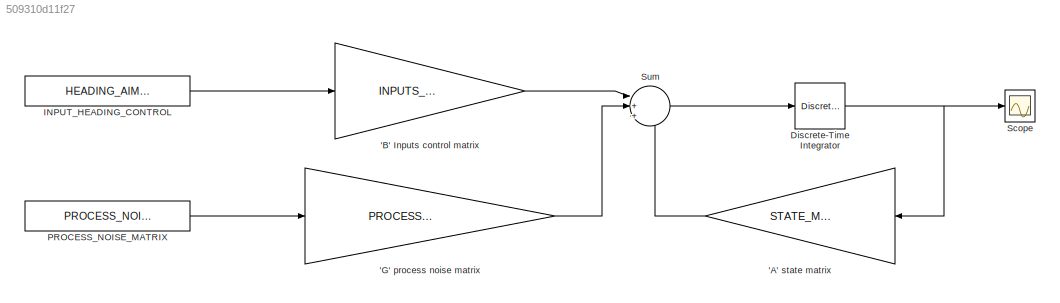
MODEL slx_509310d11f27
KIND model
CONFIG AbsTol = auto
CONFIG EnableMultiTasking = off
CONFIG FixedStep = auto
CONFIG MaxStep = auto
CONFIG MinStep = auto
CONFIG RelTol = 1e-3
CONFIG SampleTimeConstraint = Unconstrained
CONFIG SolverName = VariableStepAuto
CONFIG StartTime = 0.0
CONFIG StopTime = 10.0
BLOCK [Gain] 'A' state matrix
  Gain = STATE_MATRIX_MODEL_A
BLOCK [Gain] 'B' Inputs control matrix
  Gain = INPUTS_CONTROL_B
BLOCK [Gain] 'G' process noise matrix
  Gain = PROCESS_NOISE_CONTROL_MATRIX
BLOCK [DiscreteIntegrator] Discrete-Time Integrator
  ICPrevOutput = DiscIntNeverNeededParam
  ICPrevScaledInput = DiscIntNeverNeededParam
  InitialCondition = HEADING_AIMED_RADIANS(1)
  InitialConditionSetting = Auto
  SampleTime = -1
BLOCK [Constant] INPUT_HEADING_CONTROL
  Value = HEADING_AIMED_RADIANS
BLOCK [Constant] PROCESS_NOISE_MATRIX
  Value = PROCESS_NOISE
BLOCK [Scope] Scope
  Floating = off
  NumInputPorts = 1
  ScopeSpecificationString = Simulink.scopes.TimeScopeBlockCfg('CurrentConfiguration', extmgr.ConfigurationSet(extmgr.Configuration('Core','General UI',true),extmgr.Configuration('Core','Source UI',true),extmgr.Configuration('Sources','WiredSimulink',true),extmgr.Configuration('Visuals','Time Domain',true,'SerializedDisplays',{struct('MinYLimReal','-24401.57679','MaxYLimReal','6619.19677','YLabelReal','','MinYLimMag','   0.00...<+1756ch>
BLOCK [Sum] Sum
  Inputs = |+++
LINE 'A' state matrix:1 -> Sum:3
LINE 'B' Inputs control matrix:1 -> Sum:1
LINE 'G' process noise matrix:1 -> Sum:2
NET Discrete-Time Integrator:1 -> 'A' state matrix:1, Scope:1
LINE INPUT_HEADING_CONTROL:1 -> 'B' Inputs control matrix:1
LINE PROCESS_NOISE_MATRIX:1 -> 'G' process noise matrix:1
LINE Sum:1 -> Discrete-Time Integrator:1
note: NET lines group one-source signal fan-out (src -> all destinations, sorted); 1:1 wires keep LINE
